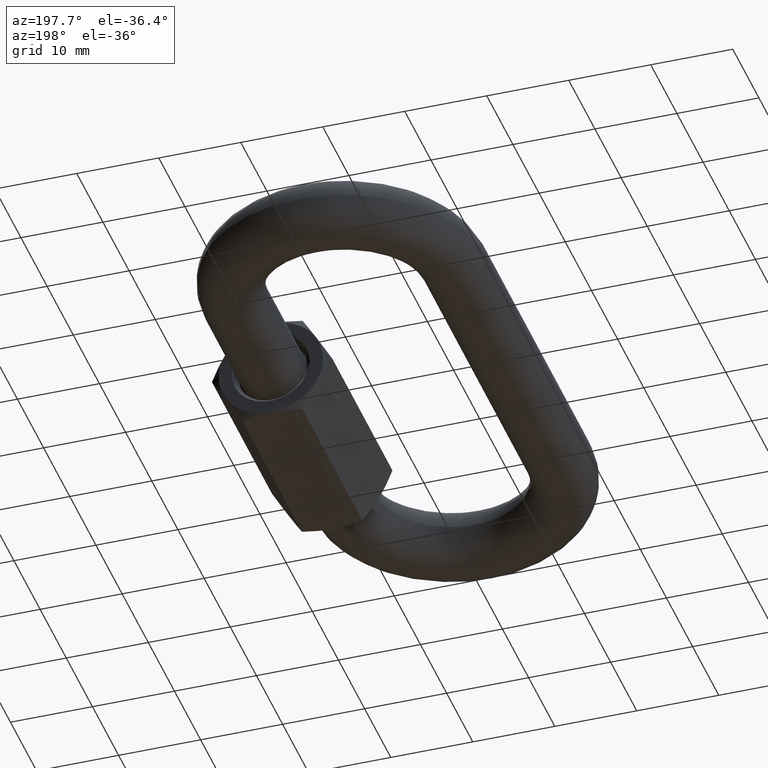
[diagram: clean part render]
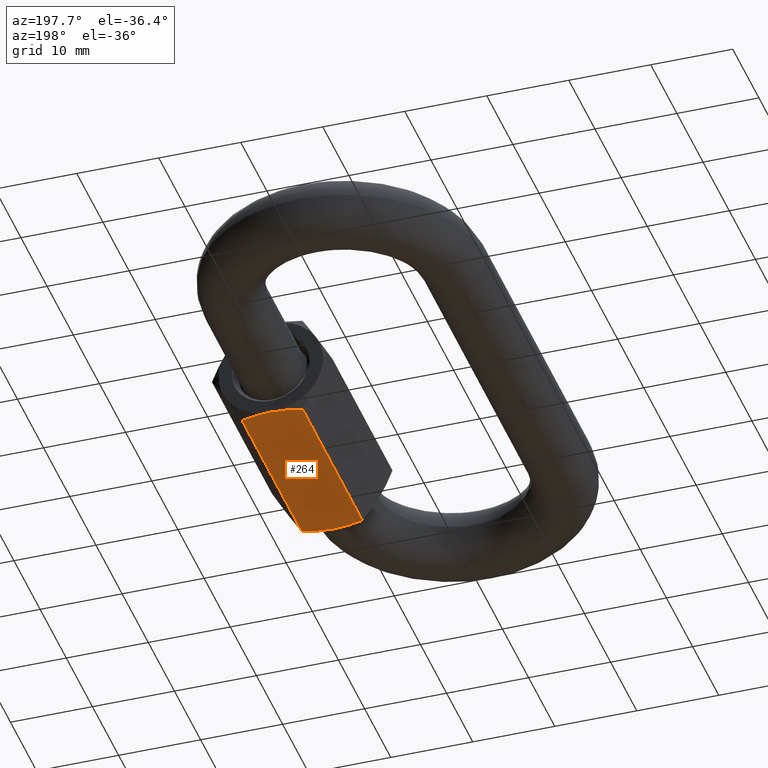
[diagram: same view with one face highlighted and labeled with its STEP entity id]
A machine part, auxiliary view. The second image highlights one B-rep face of the part: STEP entity #264.
In plain terms, the highlighted planar face has unit normal (-0, 0, 1).
Its self-contained STEP definition (entity closure, byte-faithful):
#15 = LINE ( 'NONE', #668, #758 ) ;
#26 = CARTESIAN_POINT ( 'NONE',  ( -3.680607966084257700, -11.43060796608413600, 6.374999999999999100 ) ) ;
#32 = CARTESIAN_POINT ( 'NONE',  ( -5.207378330678891700, 12.00000000000000500, 3.730556157030948700 ) ) ;
#40 = ORIENTED_EDGE ( 'NONE', *, *, #419, .T. ) ;
#44 = CARTESIAN_POINT ( 'NONE',  ( -5.520911949125795600, 12.00000000000000000, 3.187500000000000400 ) ) ;
#115 = CARTESIAN_POINT ( 'NONE',  ( -5.207850083507310000, -11.98654167839438500, 3.729739057163512500 ) ) ;
#126 = B_SPLINE_CURVE_WITH_KNOTS ( 'NONE', 3,
 ( #1942, #1440, #672, #1309, #514, #1935, #655, #1759 ),
 .UNSPECIFIED., .F., .F.,
 ( 4, 2, 2, 4 ),
 ( 0.003724410820005690600, 0.004651973522984846600, 0.005579536225964003100, 0.007434661631922314300 ),
 .UNSPECIFIED. ) ;
#168 = VERTEX_POINT ( 'NONE', #1046 ) ;
#216 = AXIS2_PLACEMENT_3D ( 'NONE', #471, #1256, #918 ) ;
#263 = ORIENTED_EDGE ( 'NONE', *, *, #748, .F. ) ;
#264 = ADVANCED_FACE ( 'NONE', ( #1532 ), #1869, .F. ) ;
#312 = B_SPLINE_CURVE_WITH_KNOTS ( 'NONE', 3,
 ( #971, #946, #1433, #1121, #32, #44 ),
 .UNSPECIFIED., .F., .F.,
 ( 4, 2, 4 ),
 ( 2.380733146774796000E-007, 0.001862324446660184200, 0.003724410820005690600 ),
 .UNSPECIFIED. ) ;
#409 = VECTOR ( 'NONE', #1702, 1000.000000000000000 ) ;
#416 = VERTEX_POINT ( 'NONE', #26 ) ;
#419 = EDGE_CURVE ( 'NONE', #590, #1118, #312, .T. ) ;
#459 = CARTESIAN_POINT ( 'NONE',  ( -5.520911949125795600, -12.00000000000000000, 3.187500000000000400 ) ) ;
#471 = CARTESIAN_POINT ( 'NONE',  ( -7.361215932167727500, 12.00000000000000000, -8.836784281954936800E-016 ) ) ;
#514 = CARTESIAN_POINT ( 'NONE',  ( -6.298451175321291700, 11.89588583083778800, 1.840762555351611800 ) ) ;
#584 = CARTESIAN_POINT ( 'NONE',  ( -4.743372722930348400, -11.89588583083779700, 4.534237444648302300 ) ) ;
#590 = VERTEX_POINT ( 'NONE', #1486 ) ;
#628 = CARTESIAN_POINT ( 'NONE',  ( -5.520911949125795600, 12.00000000000000000, 3.187500000000000400 ) ) ;
#649 = CARTESIAN_POINT ( 'NONE',  ( -5.520911949125795600, -12.00000000000000000, 3.187500000000000400 ) ) ;
#653 = EDGE_CURVE ( 'NONE', #1118, #168, #126, .T. ) ;
#655 = CARTESIAN_POINT ( 'NONE',  ( -7.060918196846800200, 11.60398494440873800, 0.5201309349737199800 ) ) ;
#656 = ORIENTED_EDGE ( 'NONE', *, *, #1757, .T. ) ;
#668 = CARTESIAN_POINT ( 'NONE',  ( -3.680607966083862900, 12.00000000000000000, 6.374999999999999100 ) ) ;
#672 = CARTESIAN_POINT ( 'NONE',  ( -5.833973814744298100, 11.98654167839438700, 2.645260942836450600 ) ) ;
#697 = CARTESIAN_POINT ( 'NONE',  ( -5.520911949125795600, -12.00000000000000000, 3.187500000000000400 ) ) ;
#699 = ORIENTED_EDGE ( 'NONE', *, *, #1628, .T. ) ;
#748 = EDGE_CURVE ( 'NONE', #590, #416, #15, .T. ) ;
#758 = VECTOR ( 'NONE', #961, 1000.000000000000000 ) ;
#803 = LINE ( 'NONE', #1358, #409 ) ;
#889 = CARTESIAN_POINT ( 'NONE',  ( -3.980905701404889600, -11.60398494440878300, 5.854869065026111500 ) ) ;
#918 = DIRECTION ( 'NONE',  ( -0.5000000000000000000, 0.0000000000000000000, -0.8660254037844386000 ) ) ;
#946 = CARTESIAN_POINT ( 'NONE',  ( -3.981657267521966100, 11.60441886130907800, 5.853567314326087800 ) ) ;
#961 = DIRECTION ( 'NONE',  ( -0.0000000000000000000, -1.000000000000000000, -0.0000000000000000000 ) ) ;
#971 = CARTESIAN_POINT ( 'NONE',  ( -3.680607966083862900, 11.43060796608387300, 6.374999999999999100 ) ) ;
#1046 = CARTESIAN_POINT ( 'NONE',  ( -7.361215932167727500, 11.43060796608387100, -1.054950193259269800E-015 ) ) ;
#1059 = EDGE_LOOP ( 'NONE', ( #699, #656, #1987, #263, #40, #1568 ) ) ;
#1060 = CARTESIAN_POINT ( 'NONE',  ( -4.283708861522885800, -11.74711102147279700, 5.330398607009328800 ) ) ;
#1118 = VERTEX_POINT ( 'NONE', #628 ) ;
#1121 = CARTESIAN_POINT ( 'NONE',  ( -4.897742492384375100, 11.94573378285737600, 4.266861160801233200 ) ) ;
#1190 = B_SPLINE_CURVE_WITH_KNOTS ( 'NONE', 3,
 ( #1689, #1240, #1383, #1856, #1231, #459 ),
 .UNSPECIFIED., .F., .F.,
 ( 4, 2, 4 ),
 ( 2.380733146781614900E-007, 0.001862324446660185200, 0.003724410820005693200 ),
 .UNSPECIFIED. ) ;
#1219 = CARTESIAN_POINT ( 'NONE',  ( -7.361215932167727500, -11.43060796608387100, -1.054950193259269800E-015 ) ) ;
#1231 = CARTESIAN_POINT ( 'NONE',  ( -5.834445567572697800, -12.00000000000000400, 2.644443842969049600 ) ) ;
#1240 = CARTESIAN_POINT ( 'NONE',  ( -7.060166630729626500, -11.60441886130908200, 0.5214326856739099900 ) ) ;
#1256 = DIRECTION ( 'NONE',  ( 0.8660254037844387100, 0.0000000000000000000, -0.5000000000000001100 ) ) ;
#1276 = VERTEX_POINT ( 'NONE', #649 ) ;
#1309 = CARTESIAN_POINT ( 'NONE',  ( -6.144317371679766100, 11.93445956315976300, 2.107730134422577200 ) ) ;
#1358 = CARTESIAN_POINT ( 'NONE',  ( -7.361215932167727500, 12.00000000000000000, -8.836784281954936800E-016 ) ) ;
#1383 = CARTESIAN_POINT ( 'NONE',  ( -6.756918241076251200, -11.74761330462050400, 1.046674303867004600 ) ) ;
#1422 = EDGE_CURVE ( 'NONE', #1276, #416, #1487, .T. ) ;
#1433 = CARTESIAN_POINT ( 'NONE',  ( -4.284905657175342800, 11.74761330462050200, 5.328325696132993400 ) ) ;
#1440 = CARTESIAN_POINT ( 'NONE',  ( -5.677092722888152000, 12.00000000000000700, 2.916986964678177000 ) ) ;
#1448 = VERTEX_POINT ( 'NONE', #1219 ) ;
#1486 = CARTESIAN_POINT ( 'NONE',  ( -3.680607966083862900, 11.43060796608387300, 6.374999999999999100 ) ) ;
#1487 = B_SPLINE_CURVE_WITH_KNOTS ( 'NONE', 3,
 ( #697, #1806, #115, #1991, #584, #1060, #889, #1522 ),
 .UNSPECIFIED., .F., .F.,
 ( 4, 2, 2, 4 ),
 ( 0.003724410820005693200, 0.004651973522984788500, 0.005579536225963884300, 0.007434661631922077600 ),
 .UNSPECIFIED. ) ;
#1522 = CARTESIAN_POINT ( 'NONE',  ( -3.680607966084257700, -11.43060796608413600, 6.374999999999999100 ) ) ;
#1532 = FACE_OUTER_BOUND ( 'NONE', #1059, .T. ) ;
#1568 = ORIENTED_EDGE ( 'NONE', *, *, #653, .T. ) ;
#1628 = EDGE_CURVE ( 'NONE', #168, #1448, #803, .T. ) ;
#1689 = CARTESIAN_POINT ( 'NONE',  ( -7.361215932167727500, -11.43060796608387100, -1.054950193259269800E-015 ) ) ;
#1702 = DIRECTION ( 'NONE',  ( -0.0000000000000000000, -1.000000000000000000, -0.0000000000000000000 ) ) ;
#1757 = EDGE_CURVE ( 'NONE', #1448, #1276, #1190, .T. ) ;
#1759 = CARTESIAN_POINT ( 'NONE',  ( -7.361215932167727500, 11.43060796608387100, -1.054950193259269800E-015 ) ) ;
#1806 = CARTESIAN_POINT ( 'NONE',  ( -5.364731175363449000, -12.00000000000000500, 3.458013035321804800 ) ) ;
#1856 = CARTESIAN_POINT ( 'NONE',  ( -6.144081405867212600, -11.94573378285737400, 2.108138839198764500 ) ) ;
#1869 = PLANE ( 'NONE',  #216 ) ;
#1935 = CARTESIAN_POINT ( 'NONE',  ( -6.758115036728784600, 11.74711102147276900, 1.044601392990535100 ) ) ;
#1942 = CARTESIAN_POINT ( 'NONE',  ( -5.520911949125795600, 12.00000000000000000, 3.187500000000000400 ) ) ;
#1987 = ORIENTED_EDGE ( 'NONE', *, *, #1422, .T. ) ;
#1991 = CARTESIAN_POINT ( 'NONE',  ( -4.897506526571860700, -11.93445956315977000, 4.267269865577352700 ) ) ;